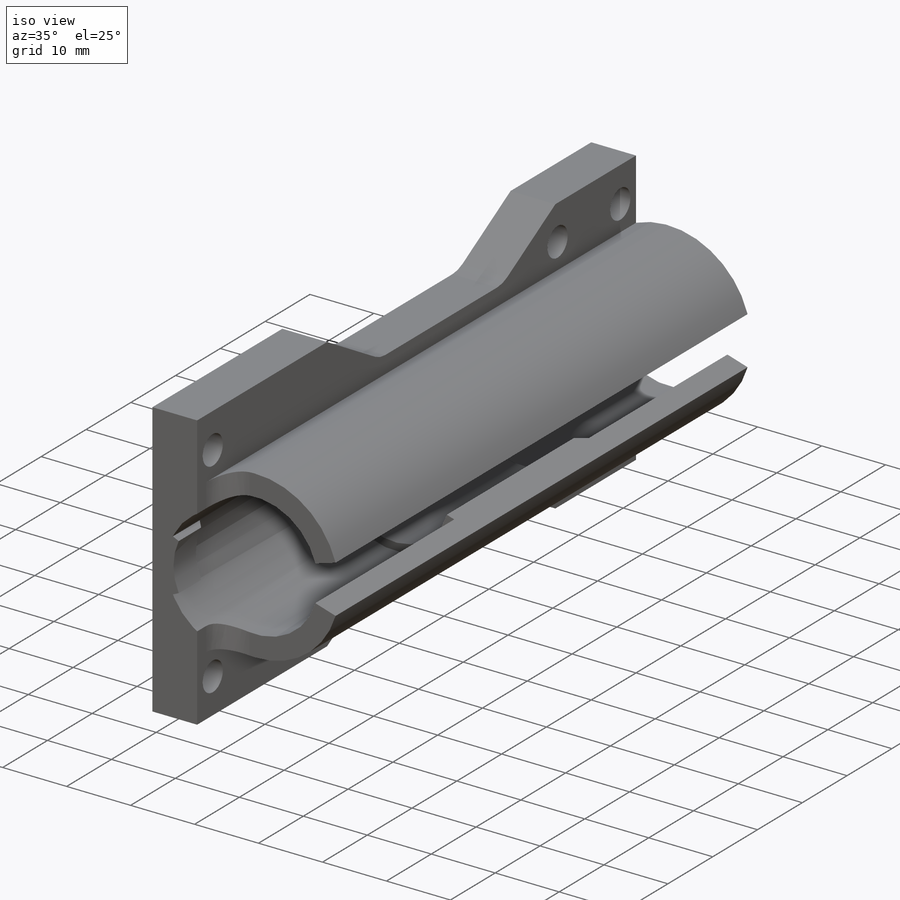
[diagram: iso view]
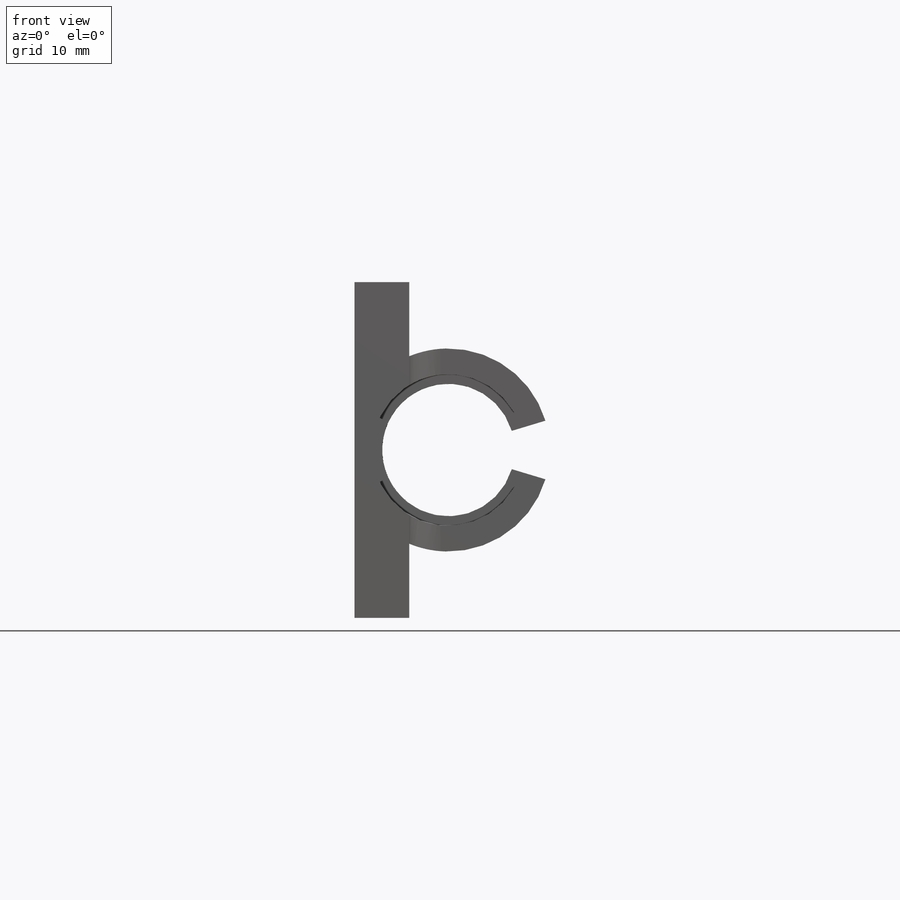
[diagram: front view]
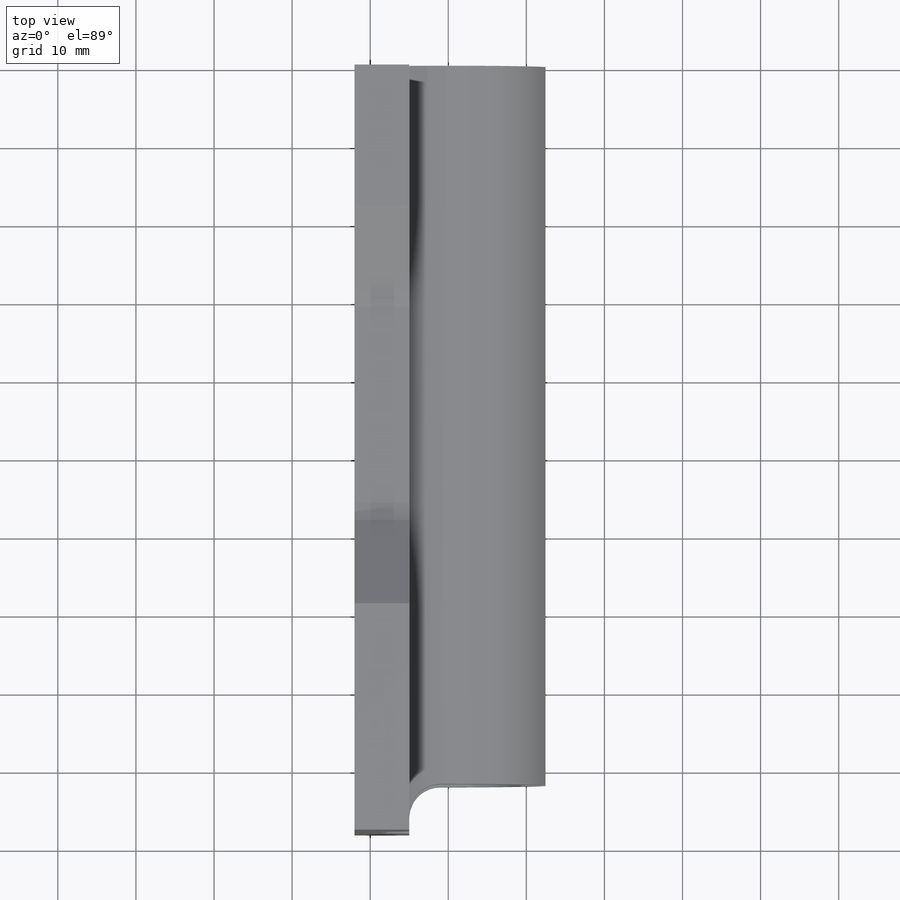
[diagram: top view]
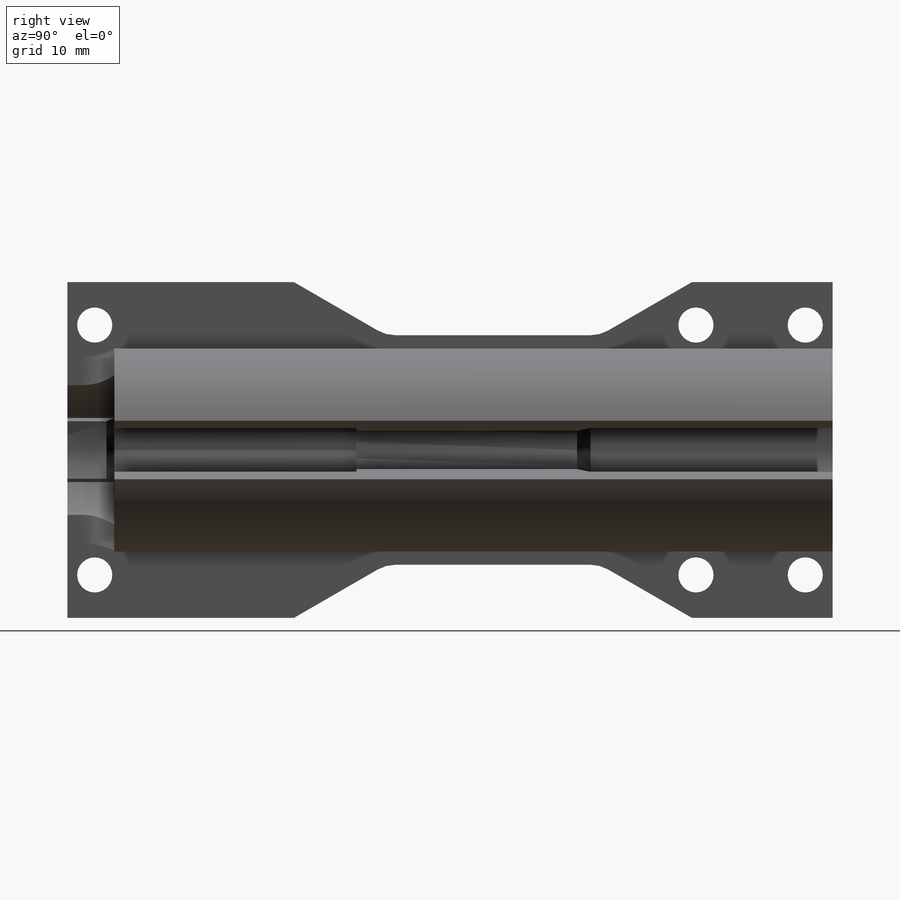
[diagram: right view]
SOLIDWORKS PART (.sldprt)
format: sldprt  version: not decoded by parser v0  size: 337,920 bytes
history: native  units: mm
features: sketch x7, cut_extrude x4, revolve x2, material x1, extrude x1, plane x1, fillet x1, mirror x1 (+11 scaffold rows collapsed)
feature tree (29):
  scaffold x11  (default folders/planes/origin — collapsed)
  material  "Material <not specified>"
  sketch  "Sketch1"  dims[c1.D4=19.4mm c1.D5=13.0mm c1.D1=7.0mm c1.D2=43.0mm c1.D3=12.0mm c1.D6=~2.919747mm c2.D6=~55.553128deg c3.D6=5.6mm]
  extrude  "Boss-Extrude1"  Depth=98mm
  sketch  "Sketch2"  dims[c1.D3=4.5mm c1.D1=~31.876584mm c1.D2=~31.876584mm c2.D1=32.0mm c2.D2=91.0mm c2.D4=77.0mm]
  cut_extrude  "Cut-Extrude1"  [1 undecoded]
  plane  "Plane1"  Offset=12mm
  sketch  "Sketch3"  dims[c1.D1=8.5mm c1.D2=~2.515703mm c1.D3=29.0mm c1.D4=5.0mm c1.D5=8.0mm c2.D1=2.0mm c2.D2=~0.767733mm c3.D2=35.0deg c3.D6=17.0mm]
  revolve  "Revolve1"  Angle=360deg
  sketch  "Sketch4"
  cut_extrude  "Cut-Extrude2"  Depth=6mm
  fillet  "Fillet1"  Radius=4mm
  sketch  "Sketch5"
  cut_extrude  "Cut-Extrude3"  [1 undecoded]
  sketch  "Sketch6"  dims[c1.D1=4.0mm c1.D3=9.0mm c2.D1=38.5mm c2.D2=25.0mm c2.D4=19.2mm c2.D5=~10.026933mm c3.D5=30.0deg c3.D6=~11.349219mm c4.D6=30.0deg]
  cut_extrude  "Cut-Extrude4"  [1 undecoded]
  mirror  "Mirror1"
  sketch  "Sketch7"  dims[c1.D1=~1.929041mm c2.D1=45.0deg c2.D2=1.0mm c2.D3=31.0mm]
  revolve  "Revolve2"  Angle=25deg
decode coverage: 10 of 16 modeling features carry decoded parameters
note: ~ marks probable driven/reference dimensions
note: 3 parameter values undecoded
summary: no parameter record found for 3 features
note: suppression state not decoded; provenance and decode notes live in map.json
